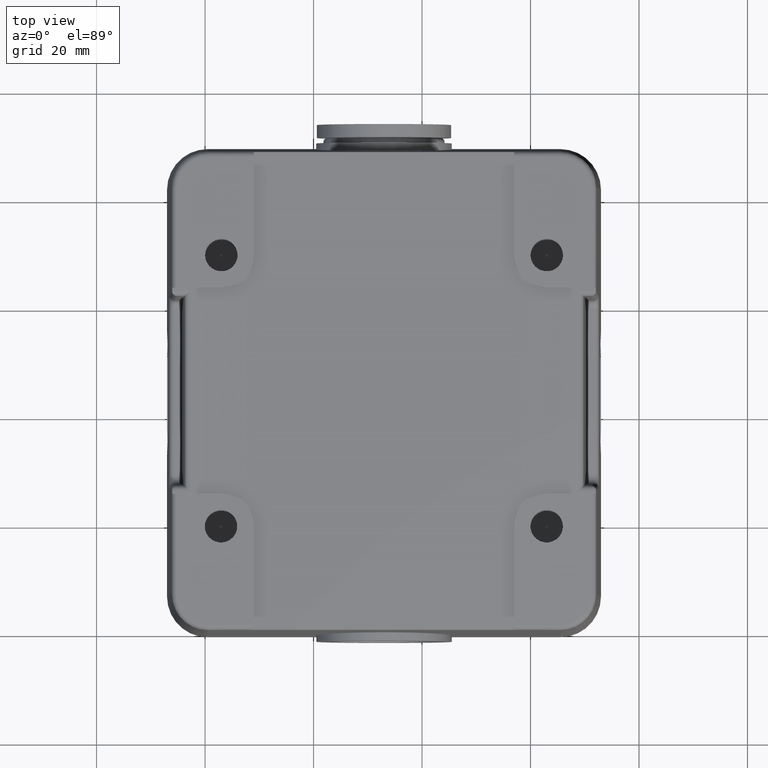
[diagram: clean part render]
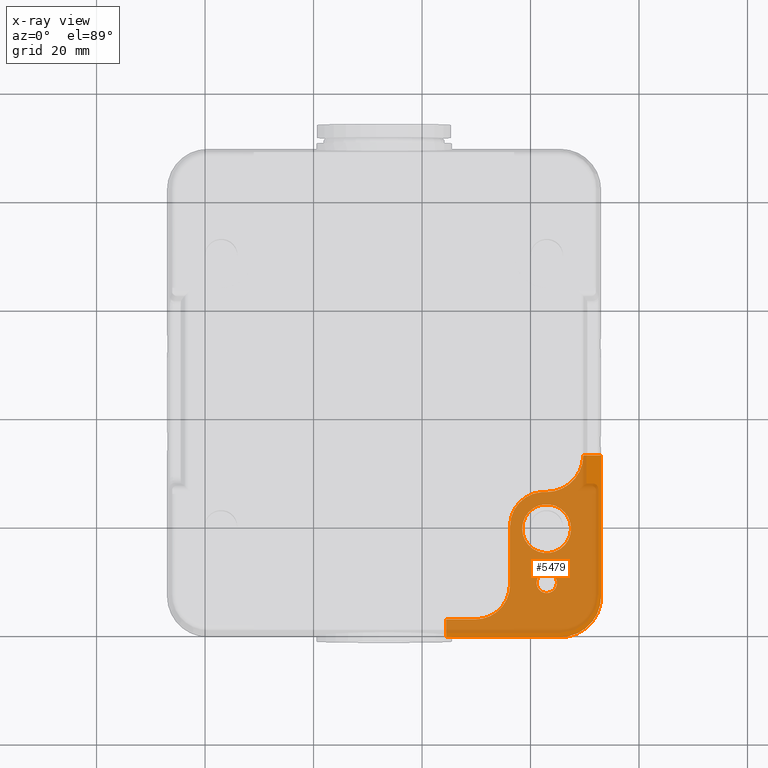
[diagram: x-ray — body ghosted, one internal face saturated and labeled with its STEP entity id]
A machine part, top view, then the same camera in x-ray: the body is ghosted and one INTERNAL B-rep face — a face not visible from any outside direction — is saturated and labeled: STEP entity #5479.
In plain terms, the highlighted planar face has unit normal (0, 0, 1).
Its self-contained STEP definition (entity closure, byte-faithful):
#4906=CARTESIAN_POINT('',(58.463075534865496,-60.608067806393336,0.0));
#4907=VERTEX_POINT('',#4906);
#4908=CARTESIAN_POINT('',(62.963075534865496,-60.608067806393336,0.0));
#4909=DIRECTION('',(0.0,0.0,1.0));
#4910=DIRECTION('',(1.0,0.0,0.0));
#4911=AXIS2_PLACEMENT_3D('',#4908,#4909,#4910);
#4912=CIRCLE('',#4911,4.500000000000000);
#4913=EDGE_CURVE('',#4907,#4907,#4912,.T.);
#5060=CARTESIAN_POINT('',(61.111153024442189,-70.608067806393336,0.0));
#5061=VERTEX_POINT('',#5060);
#5062=CARTESIAN_POINT('',(62.986153024442189,-70.608067806393336,0.0));
#5063=DIRECTION('',(0.0,0.0,1.0));
#5064=DIRECTION('',(1.0,0.0,0.0));
#5065=AXIS2_PLACEMENT_3D('',#5062,#5063,#5064);
#5066=CIRCLE('',#5065,1.875000000000000);
#5067=EDGE_CURVE('',#5061,#5061,#5066,.T.);
#5337=CARTESIAN_POINT('',(69.723202043788987,-47.125928061731486,0.0));
#5338=VERTEX_POINT('',#5337);
#5339=CARTESIAN_POINT('',(69.723280415778262,-47.108067806393315,0.0));
#5340=VERTEX_POINT('',#5339);
#5341=CARTESIAN_POINT('',(69.723202043789016,-47.125928061731486,2.220446E-016));
#5342=CARTESIAN_POINT('',(69.723230633863864,-47.120165448929342,2.225564E-016));
#5343=CARTESIAN_POINT('',(69.723256718525050,-47.114138071401513,9.663269E-017));
#5344=CARTESIAN_POINT('',(69.723280415778248,-47.108067806393315,9.714451E-017));
#5345=B_SPLINE_CURVE_WITH_KNOTS('',3,(#5341,#5342,#5343,#5344),.UNSPECIFIED.,.F.,.U.,(4,4),(0.0,0.001728805117120),.UNSPECIFIED.);
#5346=EDGE_CURVE('',#5338,#5340,#5345,.T.);
#5375=CARTESIAN_POINT('',(32.986153024442217,-35.608067806393315,0.0));
#5376=DIRECTION('',(0.0,0.0,1.0));
#5377=DIRECTION('',(1.0,0.0,0.0));
#5378=AXIS2_PLACEMENT_3D('',#5375,#5376,#5377);
#5379=PLANE('',#5378);
#5380=ORIENTED_EDGE('',*,*,#5346,.T.);
#5381=CARTESIAN_POINT('',(72.986153024442217,-47.108067806393315,-5.273559E-015));
#5382=VERTEX_POINT('',#5381);
#5383=CARTESIAN_POINT('',(69.723280415778262,-47.108067806393315,0.0));
#5384=DIRECTION('',(1.0,0.0,0.0));
#5385=VECTOR('',#5384,3.262872608663955);
#5386=LINE('',#5383,#5385);
#5387=EDGE_CURVE('',#5340,#5382,#5386,.T.);
#5388=ORIENTED_EDGE('',*,*,#5387,.T.);
#5389=CARTESIAN_POINT('',(72.986153024442203,-73.108067806393322,0.0));
#5390=VERTEX_POINT('',#5389);
#5391=CARTESIAN_POINT('',(72.986153024442203,-73.108067806393322,0.0));
#5392=DIRECTION('',(0.0,1.0,0.0));
#5393=VECTOR('',#5392,26.000000000000007);
#5394=LINE('',#5391,#5393);
#5395=EDGE_CURVE('',#5390,#5382,#5394,.T.);
#5396=ORIENTED_EDGE('',*,*,#5395,.F.);
#5397=CARTESIAN_POINT('',(65.486153024442217,-80.608067806393322,0.0));
#5398=VERTEX_POINT('',#5397);
#5399=CARTESIAN_POINT('',(65.486153024442203,-73.108067806393322,0.0));
#5400=DIRECTION('',(0.0,0.0,1.0));
#5401=DIRECTION('',(0.0,-1.0,0.0));
#5402=AXIS2_PLACEMENT_3D('',#5399,#5400,#5401);
#5403=CIRCLE('',#5402,7.500000000000000);
#5404=EDGE_CURVE('',#5398,#5390,#5403,.T.);
#5405=ORIENTED_EDGE('',*,*,#5404,.F.);
#5406=CARTESIAN_POINT('',(44.442592261831834,-80.608067806393322,0.0));
#5407=VERTEX_POINT('',#5406);
#5408=CARTESIAN_POINT('',(44.442592261831834,-80.608067806393322,0.0));
#5409=DIRECTION('',(1.0,0.0,0.0));
#5410=VECTOR('',#5409,21.043560762610383);
#5411=LINE('',#5408,#5410);
#5412=EDGE_CURVE('',#5407,#5398,#5411,.T.);
#5413=ORIENTED_EDGE('',*,*,#5412,.F.);
#5414=CARTESIAN_POINT('',(44.442592261831834,-77.345467585361817,-1.665335E-015));
#5415=VERTEX_POINT('',#5414);
#5416=CARTESIAN_POINT('',(44.442592261831834,-80.608067806393322,0.0));
#5417=DIRECTION('',(0.0,1.0,0.0));
#5418=VECTOR('',#5417,3.262600221031505);
#5419=LINE('',#5416,#5418);
#5420=EDGE_CURVE('',#5407,#5415,#5419,.T.);
#5421=ORIENTED_EDGE('',*,*,#5420,.T.);
#5422=CARTESIAN_POINT('',(49.786139523398425,-77.345467585361817,0.0));
#5423=VERTEX_POINT('',#5422);
#5424=CARTESIAN_POINT('',(44.442592261831834,-77.345467585361817,-1.665335E-015));
#5425=DIRECTION('',(1.0,0.0,0.0));
#5426=VECTOR('',#5425,5.343547261566592);
#5427=LINE('',#5424,#5426);
#5428=EDGE_CURVE('',#5415,#5423,#5427,.T.);
#5429=ORIENTED_EDGE('',*,*,#5428,.T.);
#5430=CARTESIAN_POINT('',(56.223540236630498,-70.908066872129737,0.0));
#5431=VERTEX_POINT('',#5430);
#5432=CARTESIAN_POINT('',(49.786139523398425,-70.908066872129751,0.0));
#5433=DIRECTION('',(0.0,0.0,1.0));
#5434=DIRECTION('',(-1.0,0.0,0.0));
#5435=AXIS2_PLACEMENT_3D('',#5432,#5433,#5434);
#5436=CIRCLE('',#5435,6.437400713232080);
#5437=EDGE_CURVE('',#5423,#5431,#5436,.T.);
#5438=ORIENTED_EDGE('',*,*,#5437,.T.);
#5439=CARTESIAN_POINT('',(56.223540236630491,-60.108066872128923,0.0));
#5440=VERTEX_POINT('',#5439);
#5441=CARTESIAN_POINT('',(56.223540236630498,-70.908066872129737,0.0));
#5442=DIRECTION('',(0.0,1.0,0.0));
#5443=VECTOR('',#5442,10.800000000000814);
#5444=LINE('',#5441,#5443);
#5445=EDGE_CURVE('',#5431,#5440,#5444,.T.);
#5446=ORIENTED_EDGE('',*,*,#5445,.T.);
#5447=CARTESIAN_POINT('',(62.027400217093280,-53.862291653992351,0.0));
#5448=VERTEX_POINT('',#5447);
#5449=CARTESIAN_POINT('',(62.486139523399473,-60.108066872128930,0.0));
#5450=DIRECTION('',(0.0,0.0,-1.0));
#5451=DIRECTION('',(1.0,0.0,0.0));
#5452=AXIS2_PLACEMENT_3D('',#5449,#5450,#5451);
#5453=CIRCLE('',#5452,6.262599286768973);
#5454=EDGE_CURVE('',#5440,#5448,#5453,.T.);
#5455=ORIENTED_EDGE('',*,*,#5454,.T.);
#5456=CARTESIAN_POINT('',(62.919662875696964,-53.862291653992330,0.0));
#5457=VERTEX_POINT('',#5456);
#5458=CARTESIAN_POINT('',(62.027400217093280,-53.862291653992351,0.0));
#5459=DIRECTION('',(1.0,0.0,0.0));
#5460=VECTOR('',#5459,0.892262658603684);
#5461=LINE('',#5458,#5460);
#5462=EDGE_CURVE('',#5448,#5457,#5461,.T.);
#5463=ORIENTED_EDGE('',*,*,#5462,.T.);
#5464=CARTESIAN_POINT('',(62.919662875696936,-47.058417545696535,0.0));
#5465=DIRECTION('',(0.0,0.0,1.0));
#5466=DIRECTION('',(-1.0,0.0,0.0));
#5467=AXIS2_PLACEMENT_3D('',#5464,#5465,#5466);
#5468=CIRCLE('',#5467,6.803874108295807);
#5469=EDGE_CURVE('',#5457,#5338,#5468,.T.);
#5470=ORIENTED_EDGE('',*,*,#5469,.T.);
#5471=EDGE_LOOP('',(#5380,#5388,#5396,#5405,#5413,#5421,#5429,#5438,#5446,#5455,#5463,#5470));
#5472=FACE_OUTER_BOUND('',#5471,.T.);
#5473=ORIENTED_EDGE('',*,*,#4913,.T.);
#5474=EDGE_LOOP('',(#5473));
#5475=FACE_BOUND('',#5474,.T.);
#5476=ORIENTED_EDGE('',*,*,#5067,.T.);
#5477=EDGE_LOOP('',(#5476));
#5478=FACE_BOUND('',#5477,.T.);
#5479=ADVANCED_FACE('',(#5472,#5475,#5478),#5379,.F.);